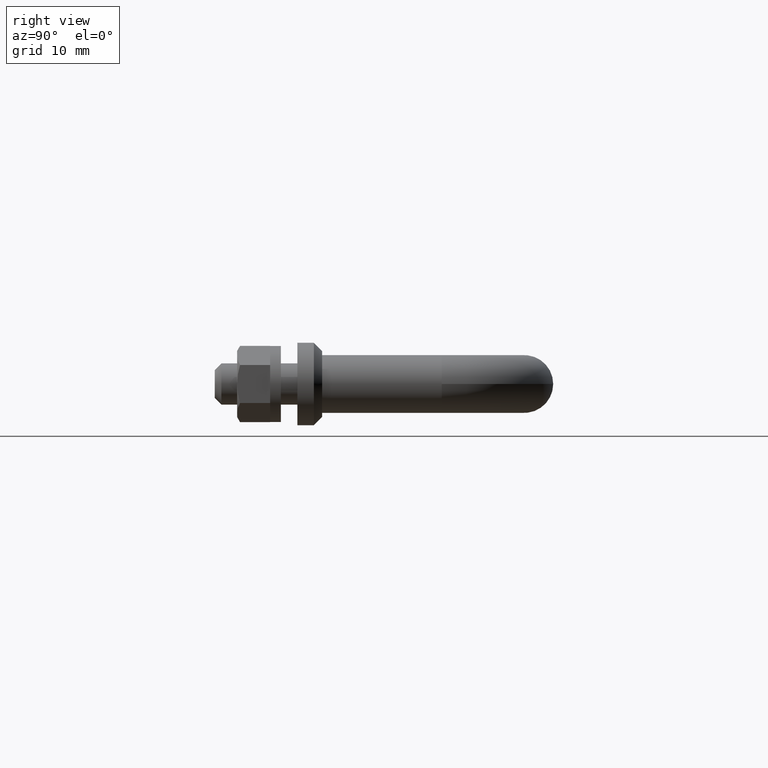
[diagram: clean part render]
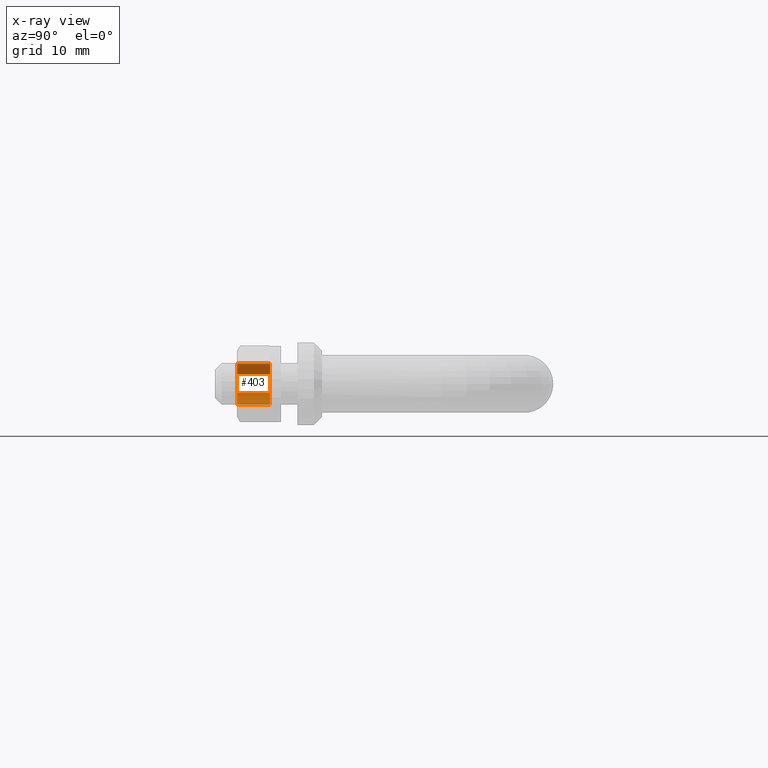
[diagram: x-ray — body ghosted, one internal face saturated and labeled with its STEP entity id]
A machine part, right view, then the same camera in x-ray: the body is ghosted and one INTERNAL B-rep face — a face not visible from any outside direction — is saturated and labeled: STEP entity #403.
In plain terms, the highlighted cylindrical surface (edge-blend (fillet) strip) has radius 2.5 mm, axis along (0, 1, 0).
Its self-contained STEP definition (entity closure, byte-faithful):
#3 = VERTEX_POINT ( 'NONE', #608 ) ;
#4 = DIRECTION ( 'NONE',  ( 0.0000000000000000000, 0.0000000000000000000, 1.000000000000000000 ) ) ;
#76 = CARTESIAN_POINT ( 'NONE',  ( 0.0000000000000000000, 8.300000000000000700, 0.0000000000000000000 ) ) ;
#104 = EDGE_CURVE ( 'NONE', #177, #3, #1479, .T. ) ;
#159 = AXIS2_PLACEMENT_3D ( 'NONE', #1319, #453, #1043 ) ;
#177 = VERTEX_POINT ( 'NONE', #994 ) ;
#181 = AXIS2_PLACEMENT_3D ( 'NONE', #76, #1211, #878 ) ;
#189 = EDGE_CURVE ( 'NONE', #3, #1579, #1348, .T. ) ;
#215 = DIRECTION ( 'NONE',  ( 0.0000000000000000000, -1.000000000000000000, 0.0000000000000000000 ) ) ;
#343 = VECTOR ( 'NONE', #1134, 1000.000000000000000 ) ;
#403 = ADVANCED_FACE ( 'NONE', ( #1133 ), #1787, .F. ) ;
#405 = ORIENTED_EDGE ( 'NONE', *, *, #104, .T. ) ;
#453 = DIRECTION ( 'NONE',  ( 0.0000000000000000000, -1.000000000000000000, 0.0000000000000000000 ) ) ;
#530 = VECTOR ( 'NONE', #215, 1000.000000000000000 ) ;
#548 = CARTESIAN_POINT ( 'NONE',  ( 3.061616997868383100E-016, 1004.300000000000000, 2.500000000000000000 ) ) ;
#608 = CARTESIAN_POINT ( 'NONE',  ( 3.061616997868383100E-016, 4.299999999999999800, 2.500000000000000000 ) ) ;
#643 = CIRCLE ( 'NONE', #181, 2.500000000000000000 ) ;
#674 = CARTESIAN_POINT ( 'NONE',  ( 0.0000000000000000000, 4.299999999999999800, 0.0000000000000000000 ) ) ;
#748 = EDGE_CURVE ( 'NONE', #177, #1004, #643, .T. ) ;
#807 = CARTESIAN_POINT ( 'NONE',  ( 0.0000000000000000000, 8.300000000000000700, -2.500000000000000000 ) ) ;
#878 = DIRECTION ( 'NONE',  ( 0.0000000000000000000, 0.0000000000000000000, 1.000000000000000000 ) ) ;
#934 = LINE ( 'NONE', #1214, #530 ) ;
#994 = CARTESIAN_POINT ( 'NONE',  ( 3.061616997868383100E-016, 8.300000000000000700, 2.500000000000000000 ) ) ;
#1004 = VERTEX_POINT ( 'NONE', #807 ) ;
#1043 = DIRECTION ( 'NONE',  ( 0.0000000000000000000, 0.0000000000000000000, -1.000000000000000000 ) ) ;
#1088 = EDGE_LOOP ( 'NONE', ( #1600, #405, #1325, #1187 ) ) ;
#1133 = FACE_OUTER_BOUND ( 'NONE', #1088, .T. ) ;
#1134 = DIRECTION ( 'NONE',  ( 0.0000000000000000000, -1.000000000000000000, 0.0000000000000000000 ) ) ;
#1187 = ORIENTED_EDGE ( 'NONE', *, *, #1373, .F. ) ;
#1211 = DIRECTION ( 'NONE',  ( -0.0000000000000000000, -1.000000000000000000, -0.0000000000000000000 ) ) ;
#1214 = CARTESIAN_POINT ( 'NONE',  ( 0.0000000000000000000, 1004.300000000000000, -2.500000000000000000 ) ) ;
#1265 = AXIS2_PLACEMENT_3D ( 'NONE', #674, #1672, #4 ) ;
#1319 = CARTESIAN_POINT ( 'NONE',  ( 0.0000000000000000000, 1004.300000000000000, 0.0000000000000000000 ) ) ;
#1325 = ORIENTED_EDGE ( 'NONE', *, *, #189, .T. ) ;
#1348 = CIRCLE ( 'NONE', #1265, 2.500000000000000000 ) ;
#1373 = EDGE_CURVE ( 'NONE', #1004, #1579, #934, .T. ) ;
#1378 = CARTESIAN_POINT ( 'NONE',  ( 0.0000000000000000000, 4.299999999999999800, -2.500000000000000000 ) ) ;
#1479 = LINE ( 'NONE', #548, #343 ) ;
#1579 = VERTEX_POINT ( 'NONE', #1378 ) ;
#1600 = ORIENTED_EDGE ( 'NONE', *, *, #748, .F. ) ;
#1672 = DIRECTION ( 'NONE',  ( -0.0000000000000000000, -1.000000000000000000, -0.0000000000000000000 ) ) ;
#1787 = CYLINDRICAL_SURFACE ( 'NONE', #159, 2.500000000000000000 ) ;